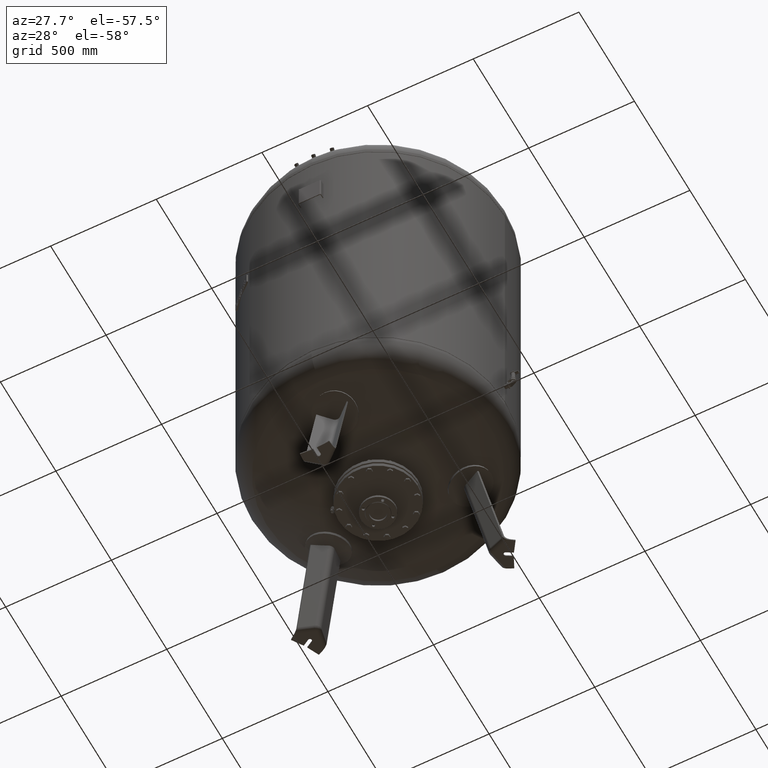
[diagram: clean part render]
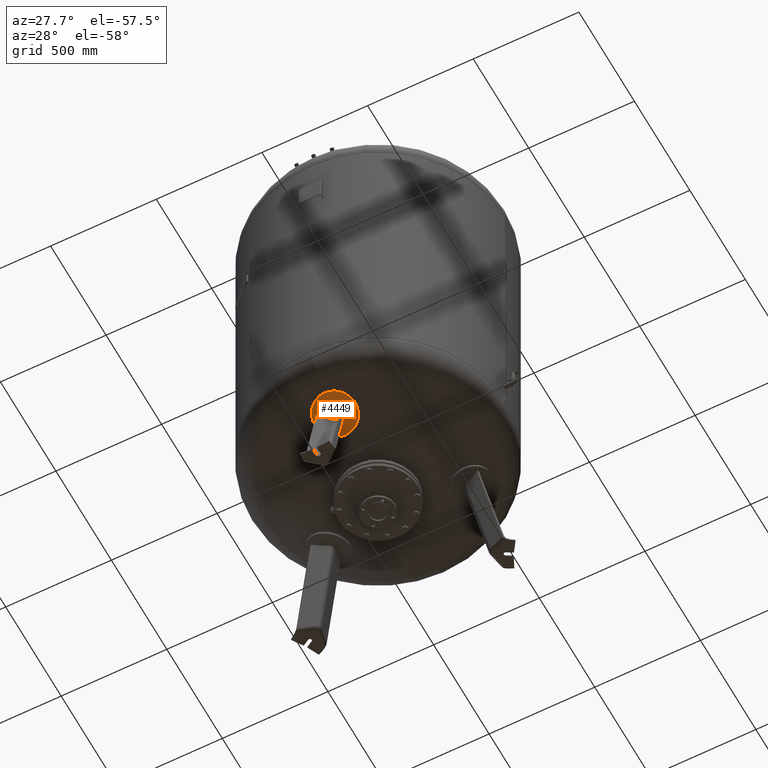
[diagram: same view with one face highlighted and labeled with its STEP entity id]
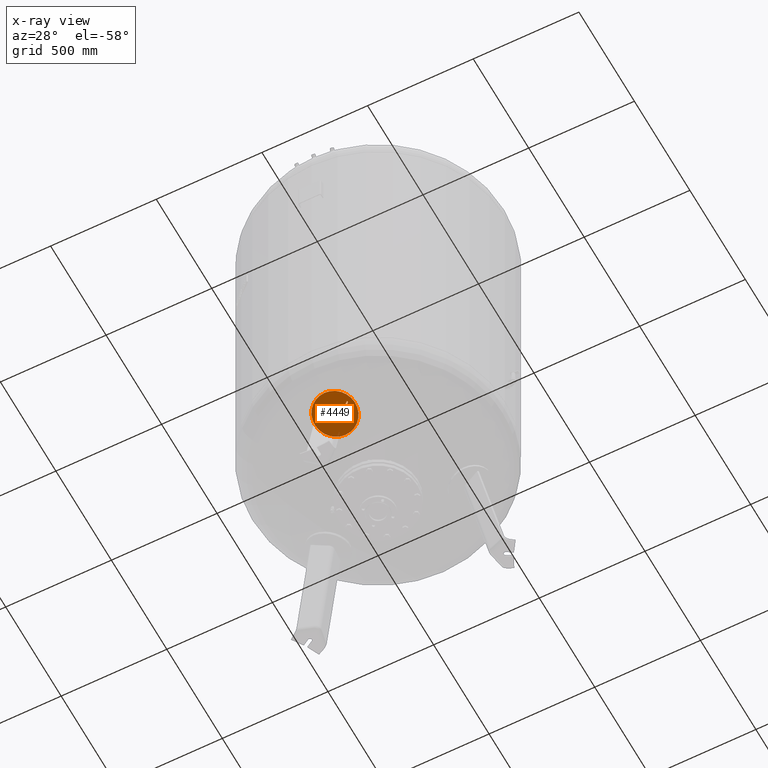
[diagram: x-ray of the same camera — body ghosted, the highlighted face saturated]
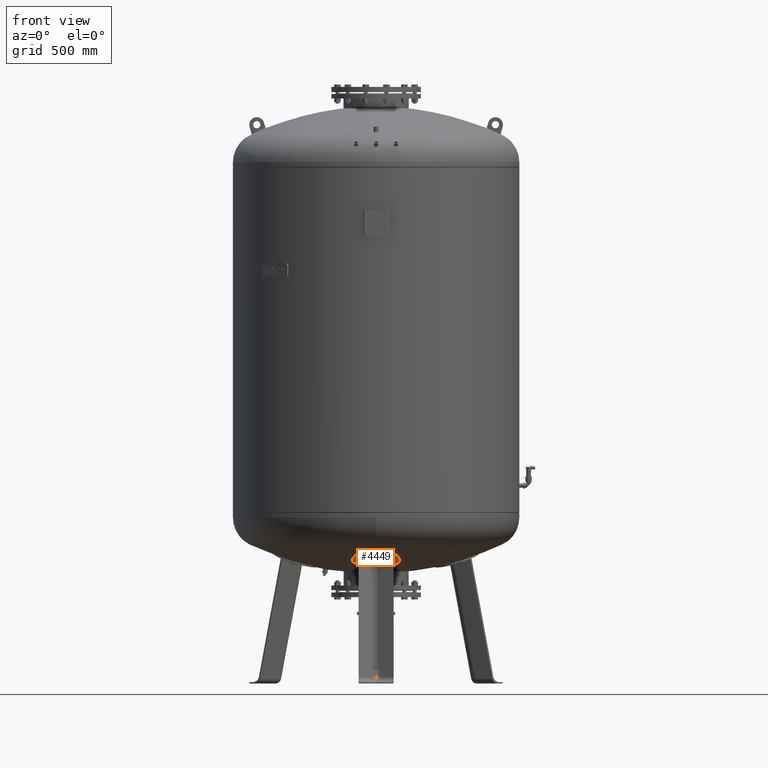
[diagram: same view with one face highlighted and labeled with its STEP entity id]
A machine part, auxiliary view. The second image highlights one B-rep face of the part: STEP entity #4449.
The next image is the same camera in x-ray: the body ghosted, the highlighted face saturated — about 0% of this face is hidden behind the body in this view.
A second angle (front view) of the same face is appended — the face is thin or edge-on in the first view.
In plain terms, the highlighted spherical surface has radius 1006 mm.
Its self-contained STEP definition (entity closure, byte-faithful):
#3679=CARTESIAN_POINT('',(0.165533239024324,-294.672642996865650,486.033440505856840));
#3680=VERTEX_POINT('',#3679);
#3689=CARTESIAN_POINT('',(0.165533239024162,-483.776358116728940,551.147071397288300));
#3690=VERTEX_POINT('',#3689);
#3691=CARTESIAN_POINT('',(0.165533239024249,-389.224500556797350,518.590255951572660));
#3692=DIRECTION('',(-2.711699E-016,-0.325568154457157,-0.945518575599317));
#3693=DIRECTION('',(7.481614E-016,0.945518575599317,-0.325568154457157));
#3694=AXIS2_PLACEMENT_3D('',#3691,#3692,#3693);
#3695=CIRCLE('',#3694,100.0);
#3696=EDGE_CURVE('',#3690,#3680,#3695,.T.);
#4316=CARTESIAN_POINT('',(0.165533239024520,-63.325086243934038,1465.070880027170500));
#4317=DIRECTION('',(1.0,0.0,0.0));
#4318=DIRECTION('',(7.481614E-016,0.945518575599317,-0.325568154457157));
#4319=AXIS2_PLACEMENT_3D('',#4316,#4317,#4318);
#4320=SPHERICAL_SURFACE('',#4319,1006.0);
#4321=CARTESIAN_POINT('',(0.165533239024249,-389.224500556797350,518.590255951572660));
#4322=DIRECTION('',(-2.711699E-016,-0.325568154457157,-0.945518575599317));
#4323=DIRECTION('',(7.481614E-016,0.945518575599317,-0.325568154457157));
#4324=AXIS2_PLACEMENT_3D('',#4321,#4322,#4323);
#4325=CIRCLE('',#4324,100.0);
#4326=EDGE_CURVE('',#3680,#3690,#4325,.T.);
#4327=ORIENTED_EDGE('',*,*,#4326,.T.);
#4328=ORIENTED_EDGE('',*,*,#3696,.T.);
#4329=EDGE_LOOP('',(#4327,#4328));
#4330=FACE_OUTER_BOUND('',#4329,.T.);
#4331=CARTESIAN_POINT('',(16.136450826554654,-366.399566169852280,505.942739782580020));
#4332=VERTEX_POINT('',#4331);
#4333=CARTESIAN_POINT('',(73.500000000000114,-412.056023191574810,524.302688812935000));
#4334=VERTEX_POINT('',#4333);
#4335=CARTESIAN_POINT('',(-41.020088505273414,-110.996632672373320,1475.203780025492300));
#4336=DIRECTION('',(-0.645458033062182,-0.747104967402682,0.158802063077709));
#4337=DIRECTION('',(-5.092368E-017,-0.207911690817760,-0.978147600733805));
#4338=AXIS2_PLACEMENT_3D('',#4335,#4336,#4337);
#4339=CIRCLE('',#4338,1003.974348556914600);
#4340=EDGE_CURVE('',#4332,#4334,#4339,.T.);
#4341=ORIENTED_EDGE('',*,*,#4340,.F.);
#4342=CARTESIAN_POINT('',(-16.136450826554444,-366.398456764061390,505.947959126467590));
#4343=VERTEX_POINT('',#4342);
#4344=CARTESIAN_POINT('',(-16.136450826554444,-366.398456764061390,505.947959126467590));
#4345=CARTESIAN_POINT('',(-15.737400566579936,-366.076748518013970,505.839519935654040));
#4346=CARTESIAN_POINT('',(-15.327147909001727,-365.766480344501820,505.734934896781850));
#4347=CARTESIAN_POINT('',(-14.046721065585743,-364.859207342083210,505.429103824092690));
#4348=CARTESIAN_POINT('',(-13.143904252568687,-364.301561156435750,505.241116411709530));
#4349=CARTESIAN_POINT('',(-11.271425572263219,-363.302030248417340,504.904132145277800));
#4350=CARTESIAN_POINT('',(-10.300484546888351,-362.859462575826110,504.754905007621570));
#4351=CARTESIAN_POINT('',(-8.309953011693755,-362.097968578637620,504.498091049258280));
#4352=CARTESIAN_POINT('',(-7.290360884908889,-361.779046057881940,504.390505482463710));
#4353=CARTESIAN_POINT('',(-5.225144980184176,-361.269712235438310,504.218613051497190));
#4354=CARTESIAN_POINT('',(-4.179354266446703,-361.079270589673680,504.154295924989920));
#4355=CARTESIAN_POINT('',(-2.085342238614453,-360.827043975141580,504.068989992027010));
#4356=CARTESIAN_POINT('',(-1.037118907308644,-360.765274041493630,504.048006248182790));
#4357=CARTESIAN_POINT('',(1.038678789270924,-360.765345349864620,504.047670768673360));
#4358=CARTESIAN_POINT('',(2.088434223304574,-360.827373189681400,504.068378031877960));
#4359=CARTESIAN_POINT('',(4.185395383273503,-361.080473335127180,504.153252291123410));
#4360=CARTESIAN_POINT('',(5.232603134368776,-361.271530564476900,504.217414209798390));
#4361=CARTESIAN_POINT('',(7.300480784593006,-361.782427323971090,504.389117041742050));
#4362=CARTESIAN_POINT('',(8.321318171703672,-362.102297385734120,504.496668222473030));
#4363=CARTESIAN_POINT('',(10.314115908884709,-362.865984454112660,504.753530564510750));
#4364=CARTESIAN_POINT('',(11.286077877784916,-363.309797658262600,504.902840471794430));
#4365=CARTESIAN_POINT('',(13.160327133807668,-364.312075777572770,505.240100544597230));
#4366=CARTESIAN_POINT('',(14.063897342508563,-364.871226890810190,505.428281643566950));
#4367=CARTESIAN_POINT('',(15.338706105894477,-365.776279989160680,505.732921779836370));
#4368=CARTESIAN_POINT('',(15.743019211407953,-366.082360497986430,505.835954876961470));
#4369=CARTESIAN_POINT('',(16.136450826554654,-366.399566169852280,505.942739782580020));
#4370=B_SPLINE_CURVE_WITH_KNOTS('',3,(#4344,#4345,#4346,#4347,#4348,#4349,#4350,#4351,#4352,#4353,#4354,#4355,#4356,#4357,#4358,#4359,#4360,#4361,#4362,#4363,#4364,#4365,#4366,#4367,#4368,#4369),.UNSPECIFIED.,.F.,.U.,(4,2,2,2,2,2,2,2,2,2,2,2,4),(32.794903054826207,34.316215825106944,37.427572589502290,40.538929353897636,43.650286118292982,46.761642882688328,49.872999647083674,52.989036057429090,56.105072467774505,59.221108878119921,62.337145288465337,65.453181698810752,66.953203267256470),.UNSPECIFIED.);
#4371=EDGE_CURVE('',#4343,#4332,#4370,.T.);
#4372=ORIENTED_EDGE('',*,*,#4371,.F.);
#4373=CARTESIAN_POINT('',(-73.499999999999886,-412.050926808483500,524.326665410275270));
#4374=VERTEX_POINT('',#4373);
#4375=CARTESIAN_POINT('',(41.213227367519892,-110.836984172192500,1475.169845689218200));
#4376=DIRECTION('',(0.645458033062181,-0.747104967402683,0.158802063077708));
#4377=DIRECTION('',(-5.092368E-017,-0.207911690817760,-0.978147600733805));
#4378=AXIS2_PLACEMENT_3D('',#4375,#4376,#4377);
#4379=CIRCLE('',#4378,1003.987906926445600);
#4380=EDGE_CURVE('',#4374,#4343,#4379,.T.);
#4381=ORIENTED_EDGE('',*,*,#4380,.F.);
#4382=CARTESIAN_POINT('',(-72.837866169854905,-418.875260683767750,526.832862714638170));
#4383=VERTEX_POINT('',#4382);
#4384=CARTESIAN_POINT('',(-86.157992096503818,-71.094203524131558,1466.722256883460400));
#4385=DIRECTION('',(0.995793708775987,0.089621433789838,-0.019049623818306));
#4386=DIRECTION('',(-0.019126591083317,4.684664E-018,-0.999817070025078));
#4387=AXIS2_PLACEMENT_3D('',#4384,#4385,#4386);
#4388=CIRCLE('',#4387,1002.258032018108500);
#4389=EDGE_CURVE('',#4383,#4374,#4388,.T.);
#4390=ORIENTED_EDGE('',*,*,#4389,.F.);
#4391=CARTESIAN_POINT('',(-16.136450826554402,-373.822192772864470,508.325463444113210));
#4392=VERTEX_POINT('',#4391);
#4393=CARTESIAN_POINT('',(45.036832094930027,-115.262731376360140,1476.110567297756700));
#4394=DIRECTION('',(-0.645458033062181,0.747104967402683,-0.158802063077709));
#4395=DIRECTION('',(5.092368E-017,0.207911690817760,0.978147600733806));
#4396=AXIS2_PLACEMENT_3D('',#4393,#4394,#4395);
#4397=CIRCLE('',#4396,1003.595123972834800);
#4398=EDGE_CURVE('',#4392,#4383,#4397,.T.);
#4399=ORIENTED_EDGE('',*,*,#4398,.F.);
#4400=CARTESIAN_POINT('',(16.136450826554661,-373.823303045940410,508.320240019970470));
#4401=VERTEX_POINT('',#4400);
#4402=CARTESIAN_POINT('',(16.136450826554661,-373.823303045940410,508.320240019970470));
#4403=CARTESIAN_POINT('',(15.917425305939714,-373.647014751298570,508.259372289933540));
#4404=CARTESIAN_POINT('',(15.695952439713579,-373.474914280727260,508.199952659748990));
#4405=CARTESIAN_POINT('',(14.586913015032827,-372.642616384653140,507.912602619461320));
#4406=CARTESIAN_POINT('',(13.669779852160106,-372.048163298794630,507.707401644527640));
#4407=CARTESIAN_POINT('',(11.848338885347227,-371.018875567778990,507.352151483820360));
#4408=CARTESIAN_POINT('',(10.866356499818522,-370.539218165504850,507.186631956602980));
#4409=CARTESIAN_POINT('',(8.802187212801522,-369.697989209095510,506.896409636033180));
#4410=CARTESIAN_POINT('',(7.719994848307462,-369.336429683015640,506.771710833648460));
#4411=CARTESIAN_POINT('',(5.513798001781595,-368.759645484505540,506.572869613931570));
#4412=CARTESIAN_POINT('',(4.388913979679063,-368.544193415049110,506.498648705277670));
#4413=CARTESIAN_POINT('',(2.160913920860796,-368.263727582201400,506.402164326406820));
#4414=CARTESIAN_POINT('',(1.057799081638127,-368.198705319538590,506.379897910233810));
#4415=CARTESIAN_POINT('',(-1.056459078413867,-368.198632636583740,506.380239856651490));
#4416=CARTESIAN_POINT('',(-2.158193197827700,-368.263414520093530,506.402806025775360));
#4417=CARTESIAN_POINT('',(-4.383474516183127,-368.543030120164470,506.499769920901030));
#4418=CARTESIAN_POINT('',(-5.507020497440985,-368.757872487493730,506.574170645728710));
#4419=CARTESIAN_POINT('',(-7.710696223964674,-369.333093625314520,506.773237798320680));
#4420=CARTESIAN_POINT('',(-8.791702362586984,-369.693698597350590,506.897982609829510));
#4421=CARTESIAN_POINT('',(-10.853737211046138,-370.532748427299340,507.188169031350010));
#4422=CARTESIAN_POINT('',(-11.834771451332275,-371.011181092939520,507.353606595328530));
#4423=CARTESIAN_POINT('',(-13.654608922278614,-372.037872143589990,507.708592610853430));
#4424=CARTESIAN_POINT('',(-14.571053363268190,-372.630860835443000,507.913606462838800));
#4425=CARTESIAN_POINT('',(-15.685135821871459,-373.465433571515350,508.202129029618390));
#4426=CARTESIAN_POINT('',(-15.912080570595853,-373.641618095140470,508.263037646980650));
#4427=CARTESIAN_POINT('',(-16.136450826554402,-373.822192772864470,508.325463444113210));
#4428=B_SPLINE_CURVE_WITH_KNOTS('',3,(#4402,#4403,#4404,#4405,#4406,#4407,#4408,#4409,#4410,#4411,#4412,#4413,#4414,#4415,#4416,#4417,#4418,#4419,#4420,#4421,#4422,#4423,#4424,#4425,#4426,#4427),.UNSPECIFIED.,.F.,.U.,(4,2,2,2,2,2,2,2,2,2,2,2,4),(34.351574704530236,35.157137084380075,38.350021909641775,41.523419197935439,44.696816486229096,47.870213774522753,51.043611062816417,54.212988341383024,57.382365619949638,60.551742898516245,63.721120177082852,66.909986527717621,67.735047143007677),.UNSPECIFIED.);
#4429=EDGE_CURVE('',#4401,#4392,#4428,.T.);
#4430=ORIENTED_EDGE('',*,*,#4429,.F.);
#4431=CARTESIAN_POINT('',(72.837866169855147,-418.880316414739580,526.809077370483350));
#4432=VERTEX_POINT('',#4431);
#4433=CARTESIAN_POINT('',(-44.843693232683513,-115.422379876540900,1476.144501634031000));
#4434=DIRECTION('',(0.645458033062182,0.747104967402682,-0.158802063077709));
#4435=DIRECTION('',(5.092368E-017,0.207911690817760,0.978147600733805));
#4436=AXIS2_PLACEMENT_3D('',#4433,#4434,#4435);
#4437=CIRCLE('',#4436,1003.580298946269700);
#4438=EDGE_CURVE('',#4432,#4401,#4437,.T.);
#4439=ORIENTED_EDGE('',*,*,#4438,.F.);
#4440=CARTESIAN_POINT('',(86.160771363025532,-71.064657675094168,1466.715976719377300));
#4441=DIRECTION('',(-0.995793708775987,0.089621433789840,-0.019049623818306));
#4442=DIRECTION('',(-0.019126591083317,4.684664E-018,0.999817070025078));
#4443=AXIS2_PLACEMENT_3D('',#4440,#4441,#4442);
#4444=CIRCLE('',#4443,1002.286491833014600);
#4445=EDGE_CURVE('',#4334,#4432,#4444,.T.);
#4446=ORIENTED_EDGE('',*,*,#4445,.F.);
#4447=EDGE_LOOP('',(#4341,#4372,#4381,#4390,#4399,#4430,#4439,#4446));
#4448=FACE_BOUND('',#4447,.T.);
#4449=ADVANCED_FACE('',(#4330,#4448),#4320,.T.);